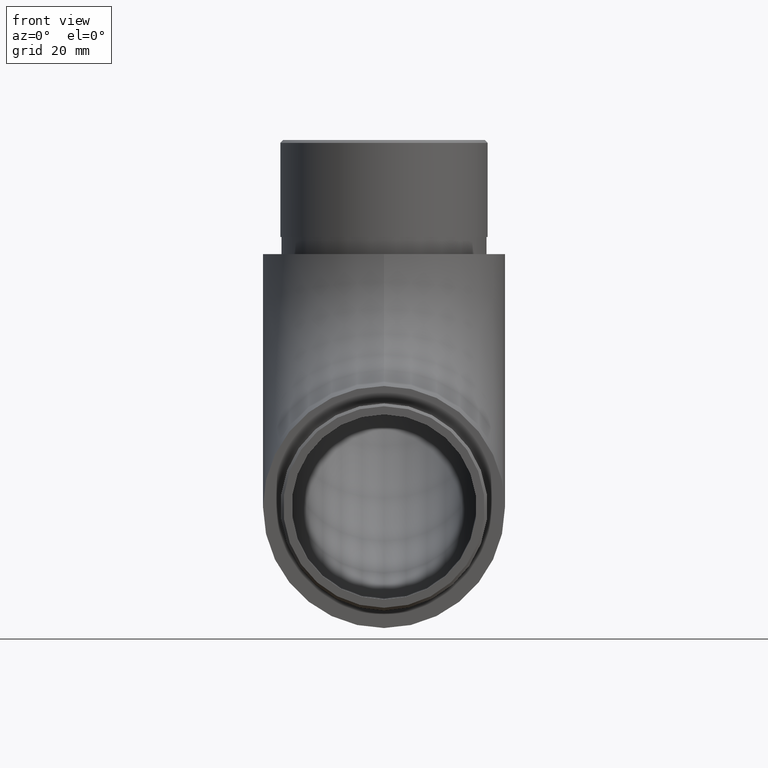
[diagram: clean part render]
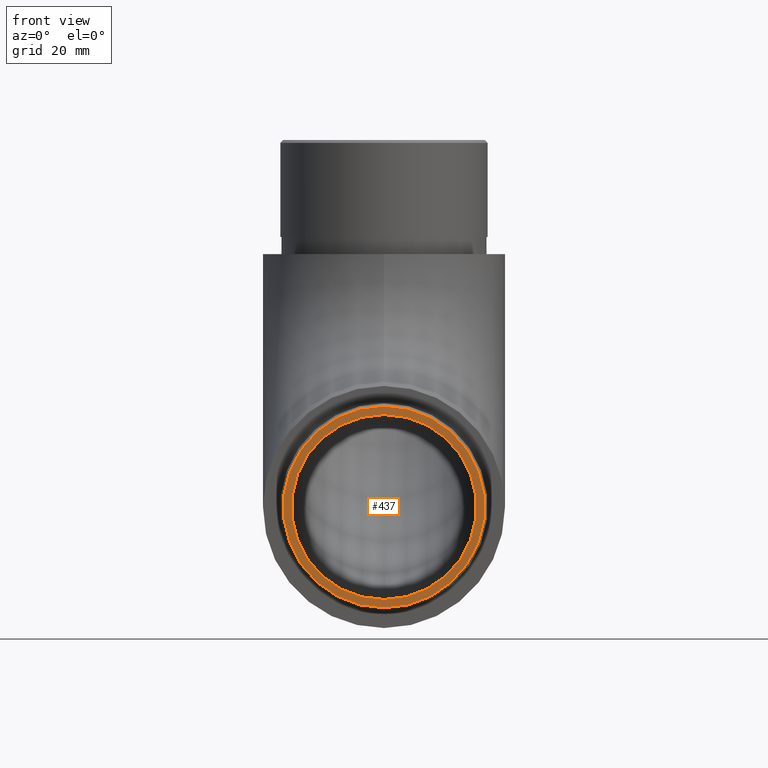
[diagram: same view with one face highlighted and labeled with its STEP entity id]
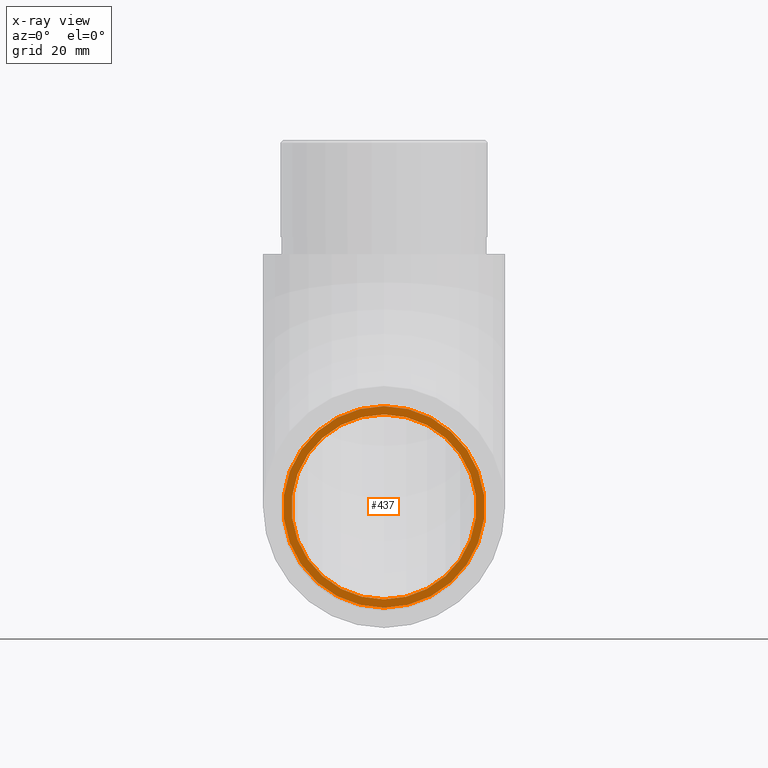
[diagram: x-ray of the same camera — body ghosted, the highlighted face saturated]
A machine part, front view. The second image highlights one B-rep face of the part: STEP entity #437.
The next image is the same camera in x-ray: the body ghosted, the highlighted face saturated — about 0% of this face is hidden behind the body in this view.
In plain terms, the highlighted planar face has unit normal (0, -1, 0).
Its self-contained STEP definition (entity closure, byte-faithful):
#386 = DIRECTION ( 'NONE',  ( 0.0000000000000000000, 0.0000000000000000000, -1.000000000000000000 ) ) ;
#437 = ADVANCED_FACE ( 'NONE', ( #948, #4006 ), #10735, .T. ) ;
#461 = CIRCLE ( 'NONE', #3108, 16.19999999999999900 ) ;
#591 = CARTESIAN_POINT ( 'NONE',  ( 0.0000000000000000000, -20.00000000000000000, 3.549999999999969600 ) ) ;
#774 = ORIENTED_EDGE ( 'NONE', *, *, #3883, .F. ) ;
#948 = FACE_OUTER_BOUND ( 'NONE', #6018, .T. ) ;
#1934 = DIRECTION ( 'NONE',  ( 0.0000000000000000000, -1.000000000000000000, 0.0000000000000000000 ) ) ;
#2043 = EDGE_CURVE ( 'NONE', #8343, #8343, #6558, .T. ) ;
#3108 = AXIS2_PLACEMENT_3D ( 'NONE', #6607, #4646, #386 ) ;
#3206 = VERTEX_POINT ( 'NONE', #3598 ) ;
#3598 = CARTESIAN_POINT ( 'NONE',  ( 0.0000000000000000000, -20.00000000000000000, 5.000000000000004400 ) ) ;
#3883 = EDGE_CURVE ( 'NONE', #3206, #3206, #461, .T. ) ;
#4006 = FACE_BOUND ( 'NONE', #6107, .T. ) ;
#4646 = DIRECTION ( 'NONE',  ( 0.0000000000000000000, -1.000000000000000000, 0.0000000000000000000 ) ) ;
#4680 = DIRECTION ( 'NONE',  ( 0.0000000000000000000, -1.000000000000000000, 0.0000000000000000000 ) ) ;
#4725 = CARTESIAN_POINT ( 'NONE',  ( 0.0000000000000000000, -20.00000000000000000, 21.20000000000000300 ) ) ;
#5750 = AXIS2_PLACEMENT_3D ( 'NONE', #4725, #4680, #7686 ) ;
#5996 = DIRECTION ( 'NONE',  ( 0.0000000000000000000, 0.0000000000000000000, -1.000000000000000000 ) ) ;
#6018 = EDGE_LOOP ( 'NONE', ( #7393 ) ) ;
#6085 = CARTESIAN_POINT ( 'NONE',  ( 0.0000000000000000000, -20.00000000000000000, 21.20000000000000300 ) ) ;
#6107 = EDGE_LOOP ( 'NONE', ( #774 ) ) ;
#6558 = CIRCLE ( 'NONE', #8944, 17.65000000000003400 ) ;
#6607 = CARTESIAN_POINT ( 'NONE',  ( 0.0000000000000000000, -20.00000000000000000, 21.20000000000000300 ) ) ;
#7393 = ORIENTED_EDGE ( 'NONE', *, *, #2043, .T. ) ;
#7686 = DIRECTION ( 'NONE',  ( 0.0000000000000000000, -0.0000000000000000000, -1.000000000000000000 ) ) ;
#8343 = VERTEX_POINT ( 'NONE', #591 ) ;
#8944 = AXIS2_PLACEMENT_3D ( 'NONE', #6085, #1934, #5996 ) ;
#10735 = PLANE ( 'NONE',  #5750 ) ;